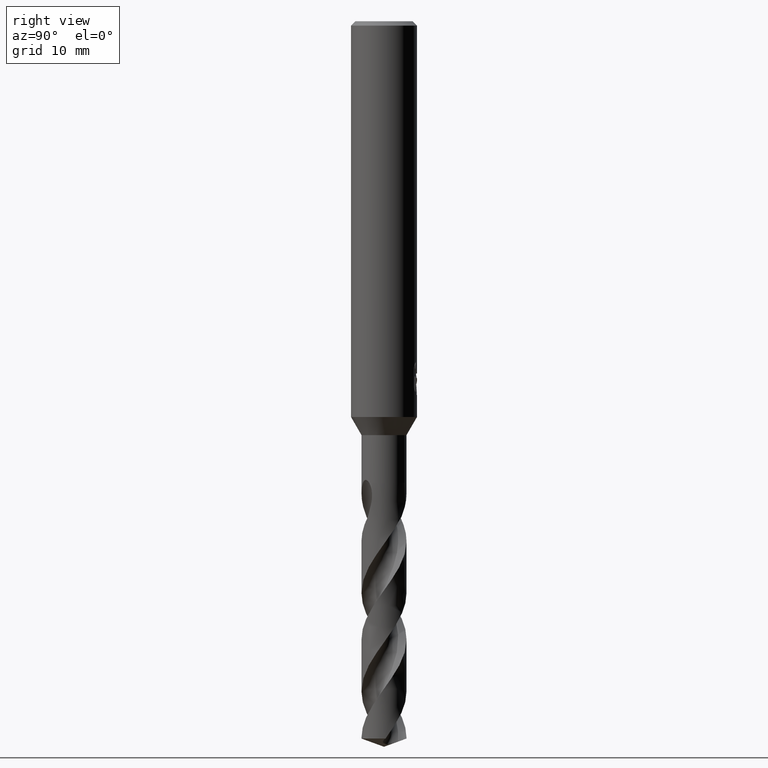
[diagram: clean part render]
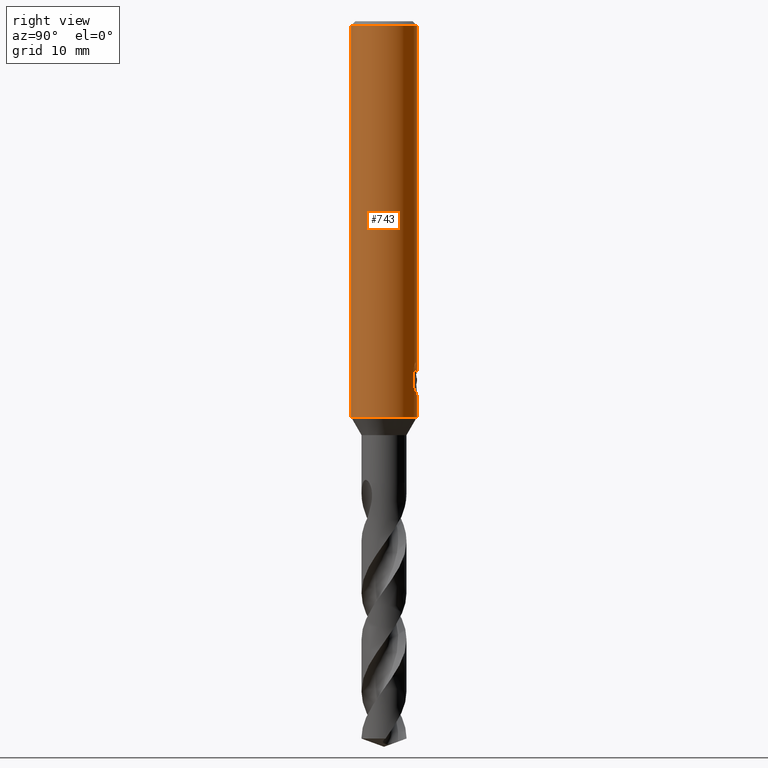
[diagram: same view with one face highlighted and labeled with its STEP entity id]
A machine part, right view. The second image highlights one B-rep face of the part: STEP entity #743.
In plain terms, the highlighted cylindrical surface (edge-blend (fillet) strip) has radius 3 mm, axis along (-0, -0, 1).
Its self-contained STEP definition (entity closure, byte-faithful):
#281=VERTEX_POINT('',#788);
#295=VERTEX_POINT('',#803);
#353=VERTEX_POINT('',#865);
#365=VERTEX_POINT('',#878);
#371=EDGE_CURVE('',#281,#659,#885,.T.);
#373=EDGE_CURVE('',#507,#571,#887,.T.);
#417=VERTEX_POINT('',#934);
#463=EDGE_CURVE('',#747,#753,#987,.T.);
#479=EDGE_CURVE('',#655,#657,#1005,.T.);
#483=EDGE_CURVE('',#659,#747,#1009,.T.);
#507=VERTEX_POINT('',#1035);
#519=EDGE_CURVE('',#417,#507,#1047,.T.);
#551=EDGE_CURVE('',#753,#417,#1081,.T.);
#571=VERTEX_POINT('',#1103);
#645=EDGE_CURVE('',#295,#353,#1186,.T.);
#655=VERTEX_POINT('',#1196);
#657=VERTEX_POINT('',#1198);
#659=VERTEX_POINT('',#1200);
#693=EDGE_CURVE('',#295,#571,#1240,.T.);
#701=EDGE_CURVE('',#365,#353,#1249,.T.);
#711=EDGE_CURVE('',#655,#281,#1259,.T.);
#739=EDGE_CURVE('',#657,#365,#1289,.T.);
#743=ADVANCED_FACE('',(#1293),#1294,.T.);
#747=VERTEX_POINT('',#1299);
#753=VERTEX_POINT('',#1306);
#788=CARTESIAN_POINT('',(0.29010312703583,2.98594041730307,-33.9998328990228));
#803=CARTESIAN_POINT('',(0.0,3.0,-0.399999999999999));
#865=CARTESIAN_POINT('',(3.67381906146713E-016,-3.0,-0.399999999999999));
#878=CARTESIAN_POINT('',(3.67381906146713E-016,-3.0,-36.0));
#885=ELLIPSE('',#2539,9.14398372010932,3.0);
#887=B_SPLINE_CURVE_WITH_KNOTS('',3,(#2542,#2543,#2544,#2545,#2546,#2547,#2548,#2549,#2550,#2551,#2552,#2553,#2554,#2555,#2556,#2557,#2558,#2559,#2560,#2561,#2562,#2563,#2564,#2565,#2566,#2567,#2568),.UNSPECIFIED.,.F.,.F.,(4,2,3,2,2,2,2,2,2,2,2,2,4),(-0.54422824842136,-0.27211412421068,0.0,0.272114124210678,0.544228248421357,0.817906359646673,1.09158447087199,1.36255924571499,1.63353402055798,1.90530456554772,2.17707511053746,2.4488456555272,2.72061620051693),.UNSPECIFIED.);
#934=CARTESIAN_POINT('',(1.33721006514658,2.68549236485057,-31.5150484364821));
#987=B_SPLINE_CURVE_WITH_KNOTS('',3,(#2937,#2938,#2939,#2940,#2941,#2942,#2943,#2944),.UNSPECIFIED.,.F.,.F.,(4,2,2,4),(8.17446522132897,8.48751487521068,8.80056452909238,9.43014514523744),.UNSPECIFIED.);
#1005=LINE('',#2969,#2970);
#1009=LINE('',#3061,#3062);
#1035=CARTESIAN_POINT('',(0.799431726384364,2.89152363207533,-31.000000276873));
#1047=B_SPLINE_CURVE_WITH_KNOTS('',3,(#3799,#3800,#3801,#3802,#3803,#3804,#3805,#3806),.UNSPECIFIED.,.F.,.F.,(4,2,2,4),(0.629580638580865,1.25916127716173,1.57221094126725,1.88526060537277),.UNSPECIFIED.);
#1081=LINE('',#4049,#4050);
#1103=CARTESIAN_POINT('',(-1.20768269592175E-015,3.0,-32.0232688117743));
#1186=CIRCLE('',#4599,3.0);
#1196=CARTESIAN_POINT('',(-2.46407913303377E-016,3.0,-34.0310253601033));
#1198=CARTESIAN_POINT('',(0.0,3.0,-36.0));
#1200=CARTESIAN_POINT('',(0.873560781758957,2.86999852971612,-32.3198931596091));
#1240=LINE('',#4784,#4785);
#1249=LINE('',#4812,#4813);
#1259=B_SPLINE_CURVE_WITH_KNOTS('',3,(#5020,#5021,#5022,#5023,#5024,#5025,#5026,#5027,#5028,#5029,#5030,#5031,#5032,#5033,#5034,#5035),.UNSPECIFIED.,.F.,.F.,(4,2,2,2,2,2,2,4),(5.66023402257373,6.29060333517104,6.60504483258975,6.91948633000846,7.23392782742717,7.54836932484587,7.86141901111221,8.17446869737855),.UNSPECIFIED.);
#1289=CIRCLE('',#5366,3.0);
#1293=FACE_OUTER_BOUND('',#5372,.T.);
#1294=CYLINDRICAL_SURFACE('',#5373,3.0);
#1299=CARTESIAN_POINT('',(0.873560781758956,2.86999852971612,-33.7587351791531));
#1306=CARTESIAN_POINT('',(1.33721006514658,2.68549236485056,-33.2901657003257));
#2539=AXIS2_PLACEMENT_3D('',#5479,#5480,#5481);
#2542=CARTESIAN_POINT('',(0.665621182276714,2.92522622060321,-30.8140957881762));
#2543=CARTESIAN_POINT('',(0.728850563417096,2.91083867849353,-30.877518087557));
#2544=CARTESIAN_POINT('',(0.783900459387161,2.89602337967411,-30.9578702196133));
#2545=CARTESIAN_POINT('',(0.857188692916628,2.87518328740958,-31.1345580124299));
#2546=CARTESIAN_POINT('',(0.875400981188567,2.86943777108584,-31.2309373045166));
#2547=CARTESIAN_POINT('',(0.875400981188567,2.86943777108584,-31.3216420125868));
#2548=CARTESIAN_POINT('',(0.875400981188567,2.86943777108584,-31.412346720657));
#2549=CARTESIAN_POINT('',(0.857188692916629,2.87518328740958,-31.5087260127437));
#2550=CARTESIAN_POINT('',(0.783900459387161,2.89602337967411,-31.6854138055602));
#2551=CARTESIAN_POINT('',(0.728850563417096,2.91083867849353,-31.7657659376165));
#2552=CARTESIAN_POINT('',(0.60202838769231,2.93969645569731,-31.8929750586276));
#2553=CARTESIAN_POINT('',(0.5214778595293,2.95568533572518,-31.9483797636259));
#2554=CARTESIAN_POINT('',(0.34429909105015,2.98152194310932,-32.0221641076746));
#2555=CARTESIAN_POINT('',(0.247628172090375,2.99115403786358,-32.0405166027747));
#2556=CARTESIAN_POINT('',(0.0663244946631877,3.00062654348629,-32.0405166027747));
#2557=CARTESIAN_POINT('',(-0.0299285908853379,3.00115720326599,-32.0224875186921));
#2558=CARTESIAN_POINT('',(-0.206881310600538,2.99416773126077,-31.949244373347));
#2559=CARTESIAN_POINT('',(-0.287593937381961,2.98687212067831,-31.8940404490632));
#2560=CARTESIAN_POINT('',(-0.415200117492864,2.97182576996222,-31.7666805419979));
#2561=CARTESIAN_POINT('',(-0.470604049431396,2.96309385107775,-31.6859121102136));
#2562=CARTESIAN_POINT('',(-0.544183869965539,2.95046729924835,-31.5086992019516));
#2563=CARTESIAN_POINT('',(-0.562348199187247,2.94682278104247,-31.41223219425));
#2564=CARTESIAN_POINT('',(-0.562348199187247,2.94682278104247,-31.2310518309235));
#2565=CARTESIAN_POINT('',(-0.54418386996554,2.95046729924835,-31.134584823222));
#2566=CARTESIAN_POINT('',(-0.4706040494314,2.96309385107775,-30.95737191496));
#2567=CARTESIAN_POINT('',(-0.415200117492863,2.97182576996222,-30.8766034831756));
#2568=CARTESIAN_POINT('',(-0.351303479704285,2.97935997575782,-30.812830162452));
#2937=CARTESIAN_POINT('',(0.600330703923335,2.93932016730517,-33.9050364278969));
#2938=CARTESIAN_POINT('',(0.700343038443484,2.91889351228921,-33.8631861412044));
#2939=CARTESIAN_POINT('',(0.795685584213131,2.8940165604303,-33.8114119954011));
#2940=CARTESIAN_POINT('',(0.971352589628262,2.83988055167306,-33.692706383359));
#2941=CARTESIAN_POINT('',(1.0516835476539,2.81066216129401,-33.6257659914415));
#2942=CARTESIAN_POINT('',(1.26543925920527,2.72440179743877,-33.4122346680481));
#2943=CARTESIAN_POINT('',(1.3899740959159,2.66030349847411,-33.2319488826214));
#2944=CARTESIAN_POINT('',(1.47371594109741,2.61307507066968,-33.0321377817991));
#2969=CARTESIAN_POINT('',(-3.67381906146713E-016,3.0,-18.2));
#2970=VECTOR('',#5631,1.0);
#3061=CARTESIAN_POINT('',(0.873560781758957,2.86999852971612,-33.0393141693811));
#3062=VECTOR('',#5632,1.0);
#3799=CARTESIAN_POINT('',(1.47371594887933,2.61307506628086,-31.7730763684241));
#3800=CARTESIAN_POINT('',(1.38997410067862,2.66030349611674,-31.5732652606136));
#3801=CARTESIAN_POINT('',(1.2654392594963,2.72440179761724,-31.3929794688919));
#3802=CARTESIAN_POINT('',(1.05168354029617,2.81066216411606,-31.1794481382038));
#3803=CARTESIAN_POINT('',(0.971352579549231,2.83988055521709,-31.1125077441098));
#3804=CARTESIAN_POINT('',(0.795685568183073,2.89401656493242,-30.9938021282019));
#3805=CARTESIAN_POINT('',(0.700343019183212,2.91889351702519,-30.9420279807093));
#3806=CARTESIAN_POINT('',(0.600330681290245,2.93932017192779,-30.9001776926585));
#4049=CARTESIAN_POINT('',(1.33721006514658,2.68549236485056,-32.4026070684039));
#4050=VECTOR('',#5696,1.0);
#4599=AXIS2_PLACEMENT_3D('',#5828,#5829,#5830);
#4784=CARTESIAN_POINT('',(-3.67381906146713E-016,3.0,-18.2));
#4785=VECTOR('',#5915,1.0);
#4812=CARTESIAN_POINT('',(3.67381906146713E-016,-3.0,-18.2));
#4813=VECTOR('',#5926,1.0);
#5020=CARTESIAN_POINT('',(-1.53050642192579,2.58022287650581,-33.0319811255889));
#5021=CARTESIAN_POINT('',(-1.44691631248335,2.62980577312329,-33.2314887010961));
#5022=CARTESIAN_POINT('',(-1.32276760444366,2.69707077181617,-33.4113258593841));
#5023=CARTESIAN_POINT('',(-1.10973155101076,2.78826898930335,-33.6245951706909));
#5024=CARTESIAN_POINT('',(-1.02948996220254,2.81934349084513,-33.6916117853674));
#5025=CARTESIAN_POINT('',(-0.853932698223484,2.87738531454781,-33.8105216600777));
#5026=CARTESIAN_POINT('',(-0.758609991487907,2.90431263574779,-33.8624240602539));
#5027=CARTESIAN_POINT('',(-0.558469552260235,2.94934446690523,-33.9464055954533));
#5028=CARTESIAN_POINT('',(-0.453457041446381,2.96746268462387,-33.9785511641911));
#5029=CARTESIAN_POINT('',(-0.240810292537893,2.99223469602914,-34.0209924679526));
#5030=CARTESIAN_POINT('',(-0.133171317626829,2.99887501234033,-34.0312723335086));
#5031=CARTESIAN_POINT('',(0.0759830626177195,3.00085245803086,-34.0312723335086));
#5032=CARTESIAN_POINT('',(0.183273473896684,2.99629272230549,-34.0210815541729));
#5033=CARTESIAN_POINT('',(0.39543915272815,2.97573303917486,-33.9788816901513));
#5034=CARTESIAN_POINT('',(0.500318639064909,2.95974677710468,-33.9468871509919));
#5035=CARTESIAN_POINT('',(0.600330982089903,2.93932011049205,-33.9050368602192));
#5366=AXIS2_PLACEMENT_3D('',#5957,#5958,#5959);
#5372=EDGE_LOOP('',(#5962,#5963,#5964,#5965,#5966,#5967,#5968,#5969,#5970,#5971,#5972,#5973));
#5373=AXIS2_PLACEMENT_3D('',#5974,#5975,#5976);
#5479=CARTESIAN_POINT('',(0.0,0.0,-34.8351219173269));
#5480=DIRECTION('',(0.944648353914092,0.0,-0.328084573619969));
#5481=DIRECTION('',(0.328084573619969,-0.0,0.944648353914092));
#5631=DIRECTION('',(0.0,0.0,-1.0));
#5632=DIRECTION('',(0.0,0.0,-1.0));
#5696=DIRECTION('',(-0.0,-0.0,1.0));
#5828=CARTESIAN_POINT('',(0.0,0.0,-0.399999999999999));
#5829=DIRECTION('',(0.0,0.0,-1.0));
#5830=DIRECTION('',(0.0,1.0,0.0));
#5915=DIRECTION('',(0.0,0.0,-1.0));
#5926=DIRECTION('',(-0.0,-0.0,1.0));
#5957=CARTESIAN_POINT('',(0.0,0.0,-36.0));
#5958=DIRECTION('',(0.0,0.0,-1.0));
#5959=DIRECTION('',(0.0,1.0,0.0));
#5962=ORIENTED_EDGE('',*,*,#693,.F.);
#5963=ORIENTED_EDGE('',*,*,#645,.T.);
#5964=ORIENTED_EDGE('',*,*,#701,.F.);
#5965=ORIENTED_EDGE('',*,*,#739,.F.);
#5966=ORIENTED_EDGE('',*,*,#479,.F.);
#5967=ORIENTED_EDGE('',*,*,#711,.T.);
#5968=ORIENTED_EDGE('',*,*,#371,.T.);
#5969=ORIENTED_EDGE('',*,*,#483,.T.);
#5970=ORIENTED_EDGE('',*,*,#463,.T.);
#5971=ORIENTED_EDGE('',*,*,#551,.T.);
#5972=ORIENTED_EDGE('',*,*,#519,.T.);
#5973=ORIENTED_EDGE('',*,*,#373,.T.);
#5974=CARTESIAN_POINT('',(0.0,0.0,-18.2));
#5975=DIRECTION('',(-0.0,-0.0,1.0));
#5976=DIRECTION('',(0.0,1.0,0.0));